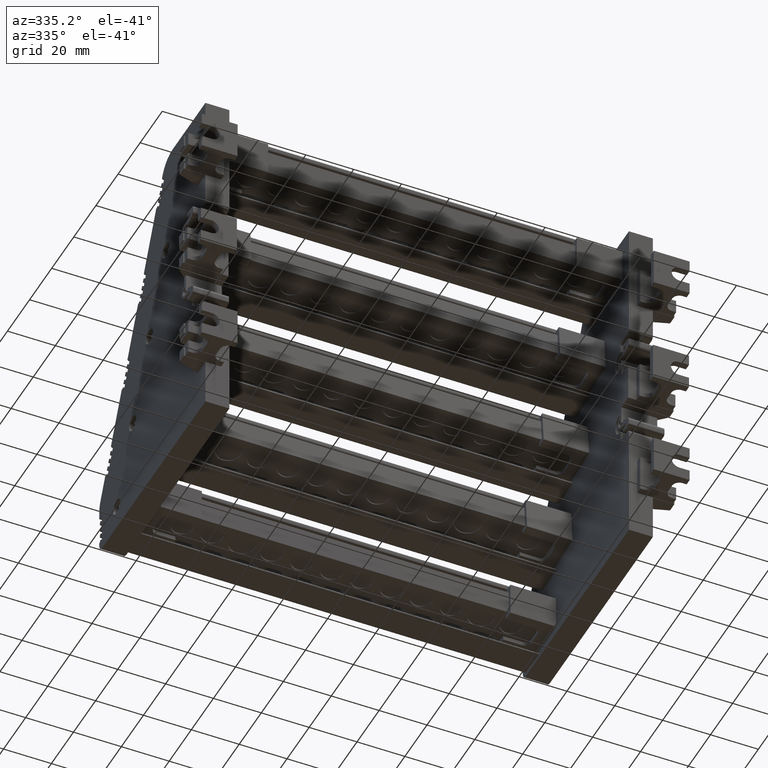
[diagram: clean part render]
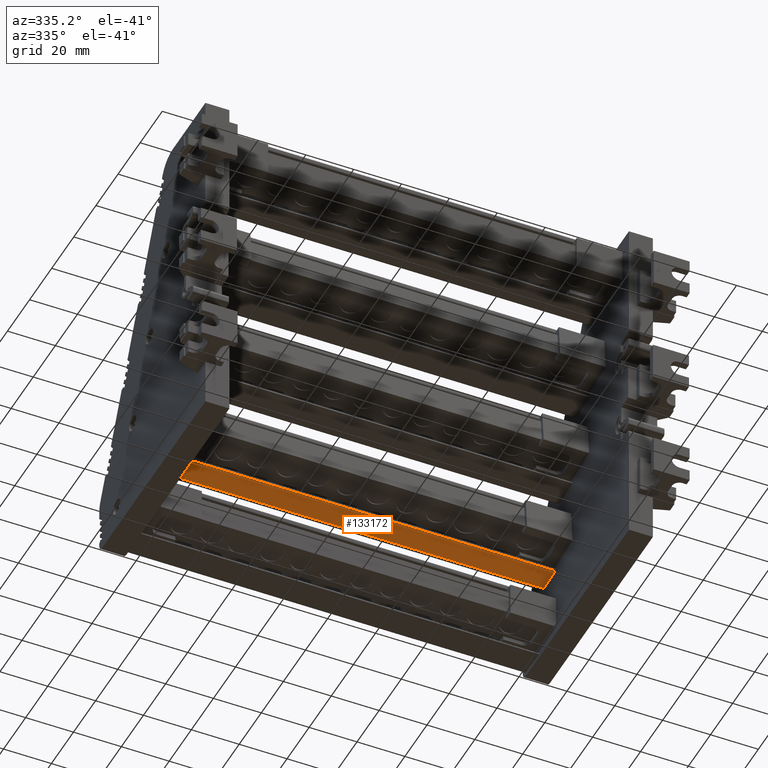
[diagram: same view with one face highlighted and labeled with its STEP entity id]
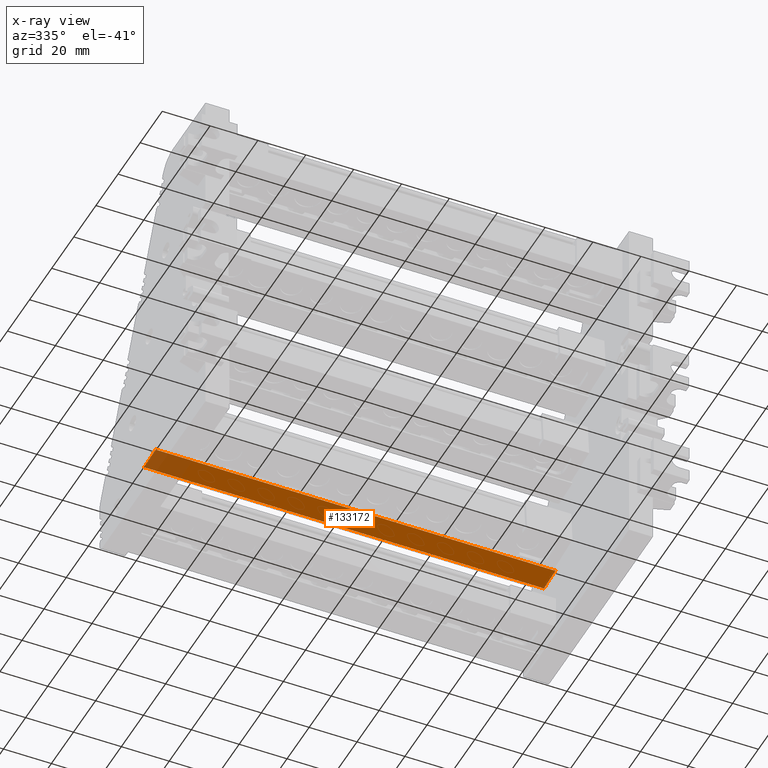
[diagram: x-ray of the same camera — body ghosted, the highlighted face saturated]
A machine part, auxiliary view. The second image highlights one B-rep face of the part: STEP entity #133172.
The next image is the same camera in x-ray: the body ghosted, the highlighted face saturated — about 9% of this face is hidden behind the body in this view.
In plain terms, the highlighted planar face has unit normal (-0, -0.0698, -0.9976).
Its self-contained STEP definition (entity closure, byte-faithful):
#2911 = CARTESIAN_POINT ( 'NONE',  ( -122.7994280271306000, 156.2823851820760100, -390.0397387434532000 ) ) ;
#25490 = VERTEX_POINT ( 'NONE', #212231 ) ;
#25576 = VERTEX_POINT ( 'NONE', #2911 ) ;
#41217 = VECTOR ( 'NONE', #70883, 1000.000000000000000 ) ;
#57018 = B_SPLINE_CURVE_WITH_KNOTS ( 'NONE', 3,
 ( #126715, #126708, #126670, #126807 ),
 .UNSPECIFIED., .F., .F.,
 ( 4, 4 ),
 ( 0.0000000000000000000, 1.000000000000000000 ),
 .UNSPECIFIED. ) ;
#70883 = DIRECTION ( 'NONE',  ( -1.000000000000000000, 2.840087000756201000E-016, 4.061538245885439200E-015 ) ) ;
#70922 = LINE ( 'NONE', #70938, #41217 ) ;
#70938 = CARTESIAN_POINT ( 'NONE',  ( -12.17442802713057200, 156.2823851820754200, -390.0397387434536500 ) ) ;
#74801 = EDGE_CURVE ( 'NONE', #25490, #25576, #70922, .T. ) ;
#111065 = AXIS2_PLACEMENT_3D ( 'NONE', #126333, #126382, #126387 ) ;
#112397 = ORIENTED_EDGE ( 'NONE', *, *, #143386, .F. ) ;
#112419 = ORIENTED_EDGE ( 'NONE', *, *, #184541, .T. ) ;
#112478 = ORIENTED_EDGE ( 'NONE', *, *, #143533, .T. ) ;
#112518 = ORIENTED_EDGE ( 'NONE', *, *, #74801, .T. ) ;
#126327 = FACE_OUTER_BOUND ( 'NONE', #211037, .T. ) ;
#126333 = CARTESIAN_POINT ( 'NONE',  ( -12.17442802713057200, 157.4653675778364700, -390.1224604296948000 ) ) ;
#126371 = PLANE ( 'NONE',  #111065 ) ;
#126382 = DIRECTION ( 'NONE',  ( -4.071455988280951400E-015, -0.06975605309085859700, -0.9975640796746770800 ) ) ;
#126387 = DIRECTION ( 'NONE',  ( 0.0000000000000000000, 0.9975640796746769700, -0.06975605309085858300 ) ) ;
#126670 = CARTESIAN_POINT ( 'NONE',  ( 44.19725230226226400, 159.7293825345255100, -390.2807748184496300 ) ) ;
#126708 = CARTESIAN_POINT ( 'NONE',  ( 44.19725230226226400, 163.1763798869756400, -390.5218108934454300 ) ) ;
#126715 = CARTESIAN_POINT ( 'NONE',  ( 44.19725230226220000, 166.6233772394257600, -390.7628469684412400 ) ) ;
#126807 = CARTESIAN_POINT ( 'NONE',  ( 44.19725230226223500, 156.2823851820752200, -390.0397387434538800 ) ) ;
#133172 = ADVANCED_FACE ( 'NONE', ( #126327 ), #126371, .T. ) ;
#143386 = EDGE_CURVE ( 'NONE', #159520, #152682, #189686, .T. ) ;
#143533 = EDGE_CURVE ( 'NONE', #25576, #152682, #190267, .T. ) ;
#152682 = VERTEX_POINT ( 'NONE', #205151 ) ;
#159520 = VERTEX_POINT ( 'NONE', #219831 ) ;
#184541 = EDGE_CURVE ( 'NONE', #159520, #25490, #57018, .T. ) ;
#189646 = DIRECTION ( 'NONE',  ( -1.000000000000000000, 1.014411376380974100E-014, 3.372056714747482900E-015 ) ) ;
#189681 = CARTESIAN_POINT ( 'NONE',  ( -12.17442802713051000, 166.6233772394263600, -390.7628469684410700 ) ) ;
#189686 = LINE ( 'NONE', #189681, #191619 ) ;
#190267 = LINE ( 'NONE', #190271, #191689 ) ;
#190271 = CARTESIAN_POINT ( 'NONE',  ( -122.7994280271305700, 156.2823851820762400, -390.0397387434532600 ) ) ;
#190285 = DIRECTION ( 'NONE',  ( 8.032488108865225200E-015, 0.9975640796746765300, -0.06975605309086338500 ) ) ;
#191619 = VECTOR ( 'NONE', #189646, 1000.000000000000000 ) ;
#191689 = VECTOR ( 'NONE', #190285, 1000.000000000000300 ) ;
#205151 = CARTESIAN_POINT ( 'NONE',  ( -122.7994280271305000, 166.6233772394270700, -390.7628469684406700 ) ) ;
#211037 = EDGE_LOOP ( 'NONE', ( #112478, #112397, #112419, #112518 ) ) ;
#212231 = CARTESIAN_POINT ( 'NONE',  ( 44.19725230226223500, 156.2823851820752200, -390.0397387434538800 ) ) ;
#219831 = CARTESIAN_POINT ( 'NONE',  ( 44.19725230226220000, 166.6233772394257600, -390.7628469684412400 ) ) ;